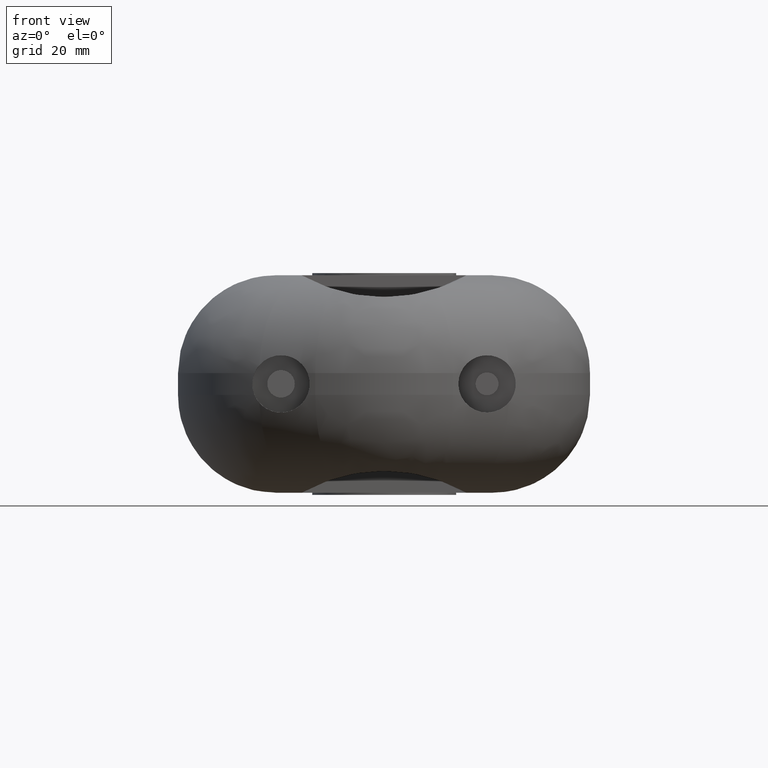
[diagram: clean part render]
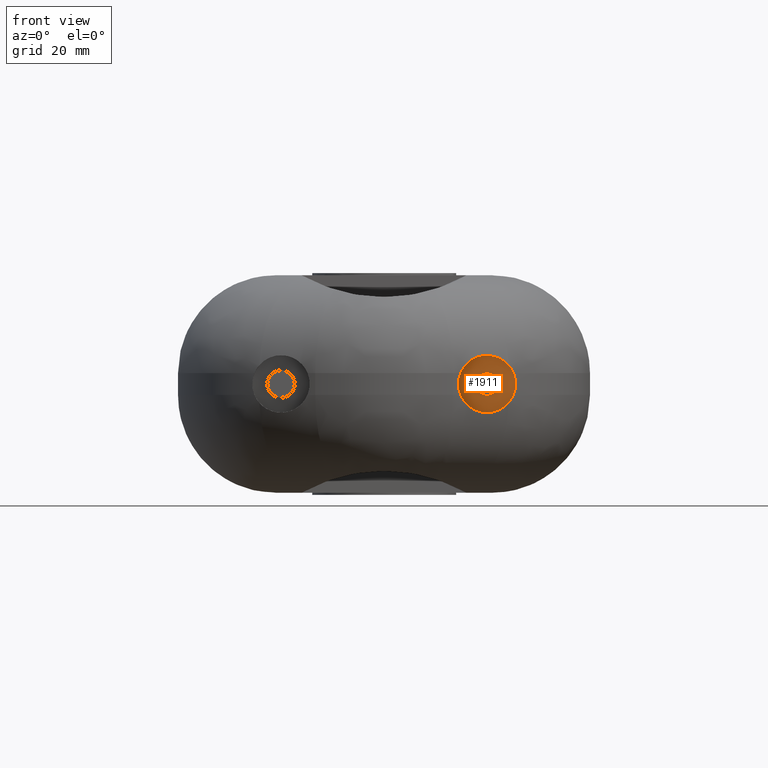
[diagram: same view with one face highlighted and labeled with its STEP entity id]
A machine part, front view. The second image highlights one B-rep face of the part: STEP entity #1911.
In plain terms, the highlighted planar face has unit normal (0, 1, 0).
Its self-contained STEP definition (entity closure, byte-faithful):
#322=PLANE('',#2045);
#385=FACE_BOUND('',#553,.T.);
#422=FACE_OUTER_BOUND('',#552,.T.);
#552=EDGE_LOOP('',(#1307));
#553=EDGE_LOOP('',(#1308));
#707=CIRCLE('',#2037,2.);
#710=CIRCLE('',#2044,5.);
#823=VERTEX_POINT('',#2862);
#832=VERTEX_POINT('',#2950);
#1013=EDGE_CURVE('',#823,#823,#707,.T.);
#1022=EDGE_CURVE('',#832,#832,#710,.T.);
#1307=ORIENTED_EDGE('',*,*,#1022,.F.);
#1308=ORIENTED_EDGE('',*,*,#1013,.T.);
#1911=ADVANCED_FACE('',(#422,#385),#322,.F.);
#2037=AXIS2_PLACEMENT_3D('',#2863,#2274,#2275);
#2044=AXIS2_PLACEMENT_3D('',#2951,#2288,#2289);
#2045=AXIS2_PLACEMENT_3D('',#2952,#2290,#2291);
#2274=DIRECTION('center_axis',(0.,1.,0.));
#2275=DIRECTION('ref_axis',(-1.,0.,0.));
#2288=DIRECTION('center_axis',(0.,1.,0.));
#2289=DIRECTION('ref_axis',(1.,0.,0.));
#2290=DIRECTION('center_axis',(0.,1.,0.));
#2291=DIRECTION('ref_axis',(0.,0.,1.));
#2862=CARTESIAN_POINT('',(20.,-5.8,2.44929359829471E-16));
#2863=CARTESIAN_POINT('Origin',(18.,-5.8,0.));
#2950=CARTESIAN_POINT('',(13.,-5.8,6.12323399573677E-16));
#2951=CARTESIAN_POINT('Origin',(18.,-5.8,0.));
#2952=CARTESIAN_POINT('Origin',(18.,-5.8,9.25185853854297E-17));